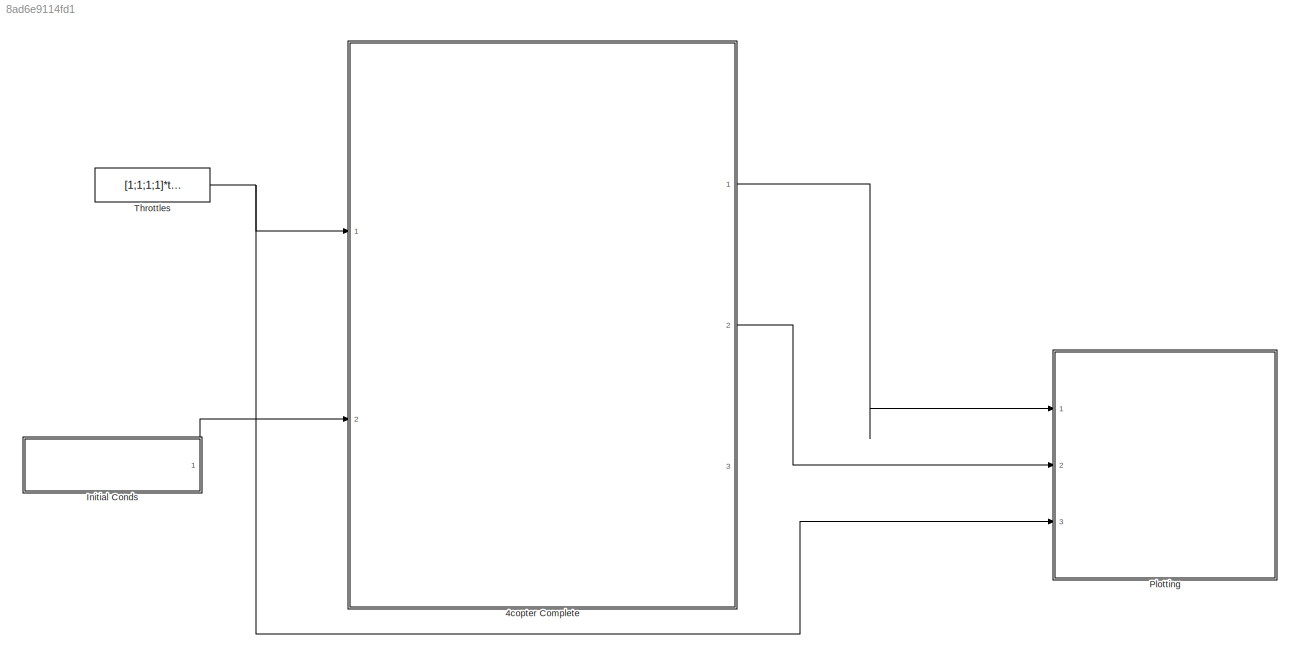
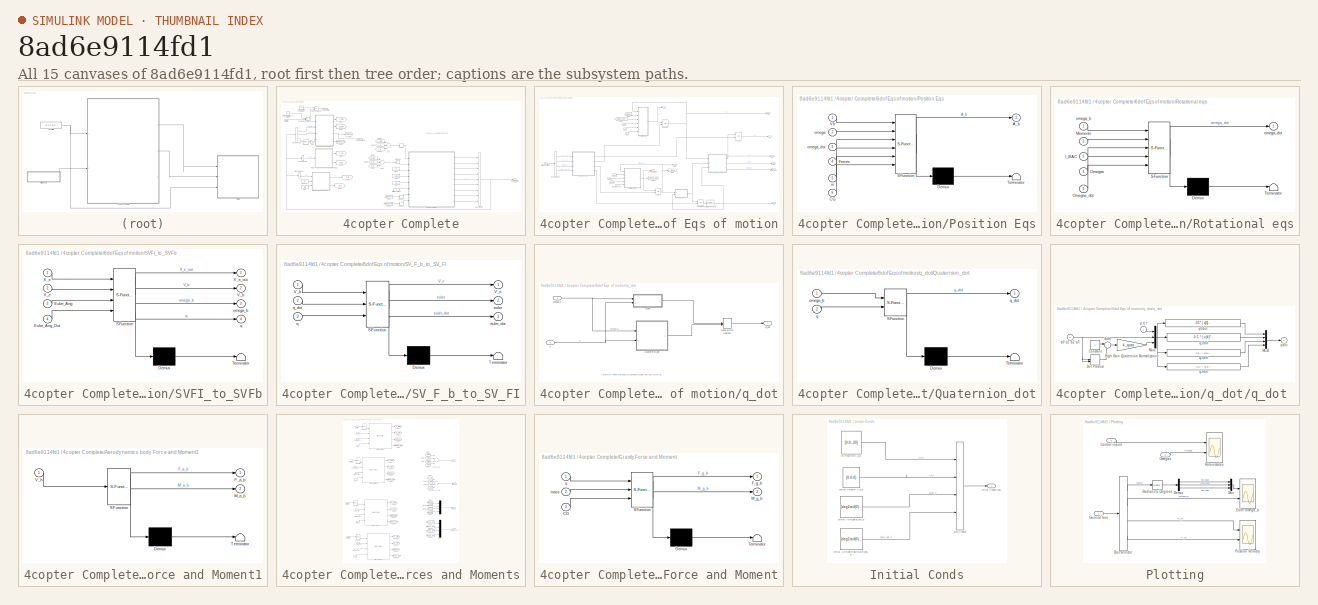
[diagram: thumbnail index - all 15 canvases of the model, root first then tree order]
MODEL slx_8ad6e9114fd1
KIND model
CONFIG AbsTol = auto
CONFIG FixedStep = T_sim
CONFIG MaxStep = auto
CONFIG MinStep = auto
CONFIG RelTol = 1e-5
CONFIG SampleTimeConstraint = Unconstrained
CONFIG Solver = ode3
CONFIG SolverMode = Auto
CONFIG SolverName = ode3
CONFIG StartTime = 0.0
CONFIG StopTime = 20
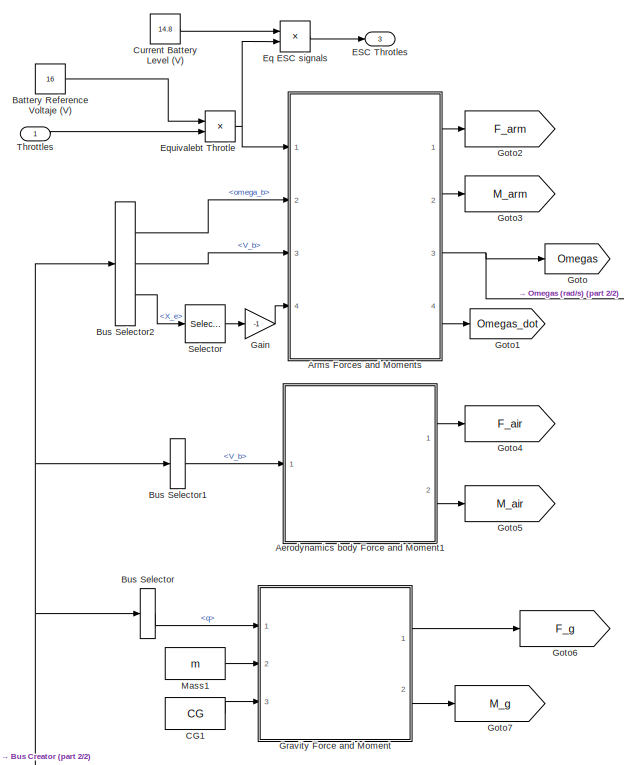
[diagram: 4copter Complete - part 1/2, left side, full height]
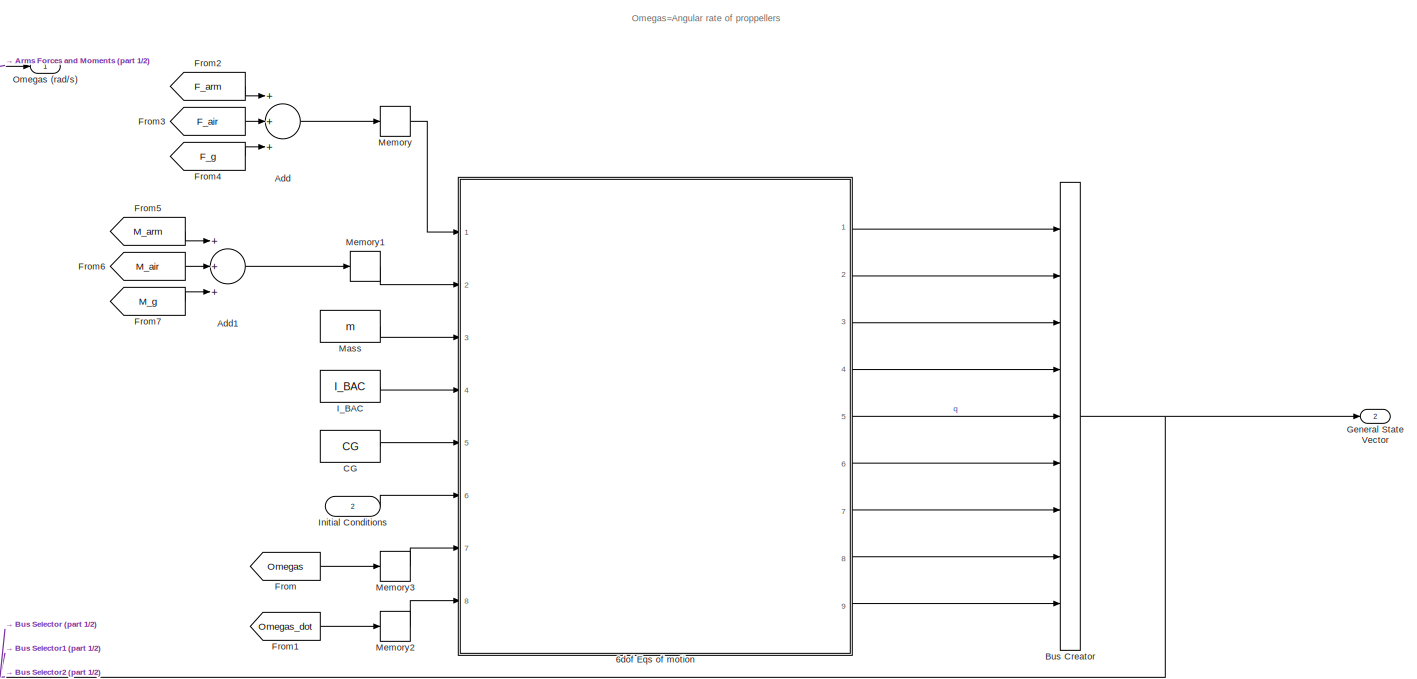
[diagram: 4copter Complete - part 2/2, central region]
BLOCK [SubSystem] 4copter Complete
  Ports = [2, 3]
  RequestExecContextInheritance = off
  TreatAsAtomicUnit = on
BLOCK [SubSystem] 4copter Complete/6dof Eqs of motion
  Ports = [8, 9]
  RequestExecContextInheritance = off
  TreatAsAtomicUnit = on
BLOCK [Outport] 4copter Complete/6dof Eqs of motion/Ab
  IconDisplay = Port number
  Port = 7
BLOCK [BusSelector] 4copter Complete/6dof Eqs of motion/Bus Selector
  OutputSignals = X_e_0,V_e_0,Euler_0,Euler_dot_0
  Ports = [1, 4]
BLOCK [Inport] 4copter Complete/6dof Eqs of motion/CG
  IconDisplay = Port number
  Port = 5
BLOCK [Inport] 4copter Complete/6dof Eqs of motion/Forces
  IconDisplay = Port number
BLOCK [From] 4copter Complete/6dof Eqs of motion/From
  GotoTag = omega
BLOCK [From] 4copter Complete/6dof Eqs of motion/From1
  GotoTag = omega_dot
BLOCK [Goto] 4copter Complete/6dof Eqs of motion/Goto
  GotoTag = omega
BLOCK [Goto] 4copter Complete/6dof Eqs of motion/Goto1
  GotoTag = omega_dot
BLOCK [Inport] 4copter Complete/6dof Eqs of motion/I_BAC
  IconDisplay = Port number
  Port = 4
BLOCK [Inport] 4copter Complete/6dof Eqs of motion/Initial Conditions
  IconDisplay = Port number
  Port = 6
BLOCK [Inport] 4copter Complete/6dof Eqs of motion/Moments
  IconDisplay = Port number
  Port = 2
BLOCK [Reference] 4copter Complete/6dof Eqs of motion/Normalize 4D vector  REF=MCopter/Normalize 4D vector
  Ports = [1, 1]
  SourceBlock = MCopter/Normalize 4D vector
  SourceType = SubSystem
BLOCK [Inport] 4copter Complete/6dof Eqs of motion/Omegas
  IconDisplay = Port number
  Port = 7
BLOCK [Inport] 4copter Complete/6dof Eqs of motion/Omegas_dot
  IconDisplay = Port number
  Port = 8
BLOCK [SubSystem] 4copter Complete/6dof Eqs of motion/Position Eqs
  ErrorFcn = Stateflow.Translate.translate
  PermitHierarchicalResolution = ExplicitOnly
  Ports = [6, 1]
  RequestExecContextInheritance = off
  SFBlockType = MATLAB Function
  TreatAsAtomicUnit = on
BLOCK [Demux] 4copter Complete/6dof Eqs of motion/Position Eqs/ Demux 
  Outputs = 1
  Ports = [1, 1]
BLOCK [S-Function] 4copter Complete/6dof Eqs of motion/Position Eqs/ SFunction 
  FunctionName = sf_sfun
  PortCounts = [6 2]
  Ports = [6, 2]
  Tag = Stateflow S-Function QuadcopterCompleteModel 1
BLOCK [Terminator] 4copter Complete/6dof Eqs of motion/Position Eqs/ Terminator 
BLOCK [Outport] 4copter Complete/6dof Eqs of motion/Position Eqs/A_b
  IconDisplay = Port number
BLOCK [Inport] 4copter Complete/6dof Eqs of motion/Position Eqs/CG
  IconDisplay = Port number
  Port = 6
BLOCK [Inport] 4copter Complete/6dof Eqs of motion/Position Eqs/Forces
  IconDisplay = Port number
  Port = 4
BLOCK [Inport] 4copter Complete/6dof Eqs of motion/Position Eqs/Vb
  IconDisplay = Port number
BLOCK [Inport] 4copter Complete/6dof Eqs of motion/Position Eqs/m
  IconDisplay = Port number
  Port = 5
BLOCK [Inport] 4copter Complete/6dof Eqs of motion/Position Eqs/omega
  IconDisplay = Port number
  Port = 2
BLOCK [Inport] 4copter Complete/6dof Eqs of motion/Position Eqs/omega_dot
  IconDisplay = Port number
  Port = 3
BLOCK [SubSystem] 4copter Complete/6dof Eqs of motion/Rotational eqs
  ErrorFcn = Stateflow.Translate.translate
  PermitHierarchicalResolution = ExplicitOnly
  Ports = [5, 1]
  RequestExecContextInheritance = off
  SFBlockType = MATLAB Function
  TreatAsAtomicUnit = on
BLOCK [Demux] 4copter Complete/6dof Eqs of motion/Rotational eqs/ Demux 
  Outputs = 1
  Ports = [1, 1]
BLOCK [S-Function] 4copter Complete/6dof Eqs of motion/Rotational eqs/ SFunction 
  FunctionName = sf_sfun
  Parameters = M_eq,R,Rotation_sign
  PortCounts = [5 2]
  Ports = [5, 2]
  Tag = Stateflow S-Function QuadcopterCompleteModel 2
BLOCK [Terminator] 4copter Complete/6dof Eqs of motion/Rotational eqs/ Terminator 
BLOCK [Inport] 4copter Complete/6dof Eqs of motion/Rotational eqs/I_BAC
  IconDisplay = Port number
  Port = 3
BLOCK [Inport] 4copter Complete/6dof Eqs of motion/Rotational eqs/Moments
  IconDisplay = Port number
  Port = 2
BLOCK [Inport] 4copter Complete/6dof Eqs of motion/Rotational eqs/Omegas
  IconDisplay = Port number
  Port = 4
BLOCK [Inport] 4copter Complete/6dof Eqs of motion/Rotational eqs/Omegas_dot
  IconDisplay = Port number
  Port = 5
BLOCK [Inport] 4copter Complete/6dof Eqs of motion/Rotational eqs/omega_b
  IconDisplay = Port number
BLOCK [Outport] 4copter Complete/6dof Eqs of motion/Rotational eqs/omega_dot
  IconDisplay = Port number
BLOCK [SubSystem] 4copter Complete/6dof Eqs of motion/SVFI_to_SVFb
  ErrorFcn = Stateflow.Translate.translate
  PermitHierarchicalResolution = ExplicitOnly
  Ports = [4, 4]
  RequestExecContextInheritance = off
  SFBlockType = MATLAB Function
  TreatAsAtomicUnit = on
BLOCK [Demux] 4copter Complete/6dof Eqs of motion/SVFI_to_SVFb/ Demux 
  Outputs = 1
  Ports = [1, 1]
BLOCK [S-Function] 4copter Complete/6dof Eqs of motion/SVFI_to_SVFb/ SFunction 
  FunctionName = sf_sfun
  PortCounts = [4 5]
  Ports = [4, 5]
  Tag = Stateflow S-Function QuadcopterCompleteModel 11
BLOCK [Terminator] 4copter Complete/6dof Eqs of motion/SVFI_to_SVFb/ Terminator 
BLOCK [Inport] 4copter Complete/6dof Eqs of motion/SVFI_to_SVFb/Euler_Ang
  IconDisplay = Port number
  Port = 3
BLOCK [Inport] 4copter Complete/6dof Eqs of motion/SVFI_to_SVFb/Euler_Ang_Dot
  IconDisplay = Port number
  Port = 4
BLOCK [Outport] 4copter Complete/6dof Eqs of motion/SVFI_to_SVFb/V_b
  IconDisplay = Port number
  Port = 2
BLOCK [Inport] 4copter Complete/6dof Eqs of motion/SVFI_to_SVFb/V_e
  IconDisplay = Port number
  Port = 2
BLOCK [Inport] 4copter Complete/6dof Eqs of motion/SVFI_to_SVFb/X_e
  IconDisplay = Port number
BLOCK [Outport] 4copter Complete/6dof Eqs of motion/SVFI_to_SVFb/X_e_out
  IconDisplay = Port number
BLOCK [Outport] 4copter Complete/6dof Eqs of motion/SVFI_to_SVFb/omega_b
  IconDisplay = Port number
  Port = 3
BLOCK [Outport] 4copter Complete/6dof Eqs of motion/SVFI_to_SVFb/q
  IconDisplay = Port number
  Port = 4
BLOCK [SubSystem] 4copter Complete/6dof Eqs of motion/SV_F_b_to_SV_FI
  ErrorFcn = Stateflow.Translate.translate
  PermitHierarchicalResolution = ExplicitOnly
  Ports = [3, 3]
  RequestExecContextInheritance = off
  SFBlockType = MATLAB Function
  TreatAsAtomicUnit = on
BLOCK [Demux] 4copter Complete/6dof Eqs of motion/SV_F_b_to_SV_FI/ Demux 
  Outputs = 1
  Ports = [1, 1]
BLOCK [S-Function] 4copter Complete/6dof Eqs of motion/SV_F_b_to_SV_FI/ SFunction 
  FunctionName = sf_sfun
  PortCounts = [3 4]
  Ports = [3, 4]
  Tag = Stateflow S-Function QuadcopterCompleteModel 12
BLOCK [Terminator] 4copter Complete/6dof Eqs of motion/SV_F_b_to_SV_FI/ Terminator 
BLOCK [Inport] 4copter Complete/6dof Eqs of motion/SV_F_b_to_SV_FI/V_b
  IconDisplay = Port number
BLOCK [Outport] 4copter Complete/6dof Eqs of motion/SV_F_b_to_SV_FI/V_e
  IconDisplay = Port number
BLOCK [Outport] 4copter Complete/6dof Eqs of motion/SV_F_b_to_SV_FI/euler
  IconDisplay = Port number
  Port = 2
BLOCK [Outport] 4copter Complete/6dof Eqs of motion/SV_F_b_to_SV_FI/euler_dot
  IconDisplay = Port number
  Port = 3
BLOCK [Inport] 4copter Complete/6dof Eqs of motion/SV_F_b_to_SV_FI/q
  IconDisplay = Port number
  Port = 3
BLOCK [Inport] 4copter Complete/6dof Eqs of motion/SV_F_b_to_SV_FI/q_dot
  IconDisplay = Port number
  Port = 2
BLOCK [Outport] 4copter Complete/6dof Eqs of motion/Vb
  IconDisplay = Port number
  Port = 3
BLOCK [Outport] 4copter Complete/6dof Eqs of motion/Ve
  IconDisplay = Port number
  Port = 2
BLOCK [Outport] 4copter Complete/6dof Eqs of motion/Xe
  IconDisplay = Port number
BLOCK [Outport] 4copter Complete/6dof Eqs of motion/euler
  IconDisplay = Port number
  Port = 8
BLOCK [Outport] 4copter Complete/6dof Eqs of motion/euler_dot
  IconDisplay = Port number
  Port = 9
BLOCK [Inport] 4copter Complete/6dof Eqs of motion/mass
  IconDisplay = Port number
  Port = 3
BLOCK [Outport] 4copter Complete/6dof Eqs of motion/p,q,r
  IconDisplay = Port number
  Port = 4
BLOCK [Integrator] 4copter Complete/6dof Eqs of motion/p,q,r 
  InitialCondition = [P_0,Q_0,R_0]
  InitialConditionSource = external
  Ports = [2, 1]
BLOCK [Outport] 4copter Complete/6dof Eqs of motion/pdot,qdot,rdot
  IconDisplay = Port number
  Port = 6
BLOCK [Outport] 4copter Complete/6dof Eqs of motion/q
  IconDisplay = Port number
  Port = 5
BLOCK [SubSystem] 4copter Complete/6dof Eqs of motion/q_dot
  Ports = [2, 1]
  RequestExecContextInheritance = off
  TreatAsAtomicUnit = on
BLOCK [SubSystem] 4copter Complete/6dof Eqs of motion/q_dot/Quaternion_dot
  ErrorFcn = Stateflow.Translate.translate
  PermitHierarchicalResolution = ExplicitOnly
  Ports = [2, 1]
  RequestExecContextInheritance = off
  SFBlockType = MATLAB Function
  TreatAsAtomicUnit = on
  VariantControl = Variant
BLOCK [Demux] 4copter Complete/6dof Eqs of motion/q_dot/Quaternion_dot/ Demux 
  Outputs = 1
  Ports = [1, 1]
BLOCK [S-Function] 4copter Complete/6dof Eqs of motion/q_dot/Quaternion_dot/ SFunction 
  FunctionName = sf_sfun
  PortCounts = [2 2]
  Ports = [2, 2]
  Tag = Stateflow S-Function QuadcopterCompleteModel 3
BLOCK [Terminator] 4copter Complete/6dof Eqs of motion/q_dot/Quaternion_dot/ Terminator 
BLOCK [Inport] 4copter Complete/6dof Eqs of motion/q_dot/Quaternion_dot/omega_b
  IconDisplay = Port number
BLOCK [Inport] 4copter Complete/6dof Eqs of motion/q_dot/Quaternion_dot/q
  IconDisplay = Port number
  Port = 2
BLOCK [Outport] 4copter Complete/6dof Eqs of motion/q_dot/Quaternion_dot/q_dot
  IconDisplay = Port number
BLOCK [ManualSwitch] 4copter Complete/6dof Eqs of motion/q_dot/chose which method
  CurrentSetting = 0
BLOCK [Inport] 4copter Complete/6dof Eqs of motion/q_dot/omega_b
  IconDisplay = Port number
BLOCK [Inport] 4copter Complete/6dof Eqs of motion/q_dot/q
  IconDisplay = Port number
  Port = 2
BLOCK [Outport] 4copter Complete/6dof Eqs of motion/q_dot/q_dot
  IconDisplay = Port number
BLOCK [SubSystem] 4copter Complete/6dof Eqs of motion/q_dot/q_dot 
  Ports = [2, 1]
  RequestExecContextInheritance = off
  TreatAsAtomicUnit = on
BLOCK [Constant] 4copter Complete/6dof Eqs of motion/q_dot/q_dot /Constant
BLOCK [DotProduct] 4copter Complete/6dof Eqs of motion/q_dot/q_dot /Dot Product
  InputSameDT = off
  OutDataTypeStr = Inherit: Inherit via internal rule
BLOCK [Gain] 4copter Complete/6dof Eqs of motion/q_dot/q_dot /High Gain Quaternion Normalization
  Gain = k_quat
BLOCK [Mux] 4copter Complete/6dof Eqs of motion/q_dot/q_dot /Mux1
  DisplayOption = bar
  Inputs = [3 4 1]
  Ports = [3, 1]
BLOCK [Mux] 4copter Complete/6dof Eqs of motion/q_dot/q_dot /Mux2
  DisplayOption = bar
  Ports = [4, 1]
BLOCK [Sum] 4copter Complete/6dof Eqs of motion/q_dot/q_dot /Sum
  IconShape = round
  Inputs = |+-
  Ports = [2, 1]
BLOCK [Inport] 4copter Complete/6dof Eqs of motion/q_dot/q_dot /p q r
  IconDisplay = Port number
BLOCK [Inport] 4copter Complete/6dof Eqs of motion/q_dot/q_dot /q0 q1 q2 q3
  IconDisplay = Port number
  Port = 2
BLOCK [Fcn] 4copter Complete/6dof Eqs of motion/q_dot/q_dot /q0dot
  Expr = -0.5 * ( u[5]*u[1]+u[6]*u[2]+u[7]*u[3] ) + u[8]*u[4]
BLOCK [Fcn] 4copter Complete/6dof Eqs of motion/q_dot/q_dot /q1dot
  Expr = 0.5 * ( u[4]*u[1]+u[6]*u[3]-u[7]*u[2] ) + u[8]*u[5]
BLOCK [Fcn] 4copter Complete/6dof Eqs of motion/q_dot/q_dot /q2dot
  Expr = 0.5 * ( u[4]*u[2]+u[7]*u[1]-u[5]*u[3] ) + u[8]*u[6]
BLOCK [Fcn] 4copter Complete/6dof Eqs of motion/q_dot/q_dot /q3dot
  Expr = 0.5 * ( u[4]*u[3]+u[5]*u[2]-u[6]*u[1] ) + u[8]*u[7]
BLOCK [Outport] 4copter Complete/6dof Eqs of motion/q_dot/q_dot /qdot
  IconDisplay = Port number
  InitialOutput = 0
BLOCK [Integrator] 4copter Complete/6dof Eqs of motion/quaternion
  InitialCondition = [P_0,Q_0,R_0]
  InitialConditionSource = external
  Ports = [2, 1]
BLOCK [Integrator] 4copter Complete/6dof Eqs of motion/ub,vb,wb
  InitialCondition = [U_0,V_0,W_0]
  InitialConditionSource = external
  Ports = [2, 1]
BLOCK [Integrator] 4copter Complete/6dof Eqs of motion/xe,ye,ze
  InitialCondition = [NORTH_0,EAST_0,-DOWN_0]
  InitialConditionSource = external
  Ports = [2, 1]
BLOCK [Sum] 4copter Complete/Add
  InputSameDT = off
  Inputs = +++
  OutDataTypeStr = Inherit: Inherit via internal rule
  Ports = [3, 1]
  SaturateOnIntegerOverflow = off
BLOCK [Sum] 4copter Complete/Add1
  InputSameDT = off
  Inputs = +++
  OutDataTypeStr = Inherit: Inherit via internal rule
  Ports = [3, 1]
  SaturateOnIntegerOverflow = off
BLOCK [SubSystem] 4copter Complete/Aerodynamics body Force and Moment1
  ErrorFcn = Stateflow.Translate.translate
  PermitHierarchicalResolution = ExplicitOnly
  Ports = [1, 2]
  RequestExecContextInheritance = off
  SFBlockType = MATLAB Function
  TreatAsAtomicUnit = on
BLOCK [Demux] 4copter Complete/Aerodynamics body Force and Moment1/ Demux 
  Outputs = 1
  Ports = [1, 1]
BLOCK [S-Function] 4copter Complete/Aerodynamics body Force and Moment1/ SFunction 
  FunctionName = sf_sfun
  Parameters = A_x,A_y,A_z,C_x,C_y,C_z,rho
  PortCounts = [1 3]
  Ports = [1, 3]
  Tag = Stateflow S-Function QuadcopterCompleteModel 5
BLOCK [Terminator] 4copter Complete/Aerodynamics body Force and Moment1/ Terminator 
BLOCK [Outport] 4copter Complete/Aerodynamics body Force and Moment1/F_a_b
  IconDisplay = Port number
BLOCK [Outport] 4copter Complete/Aerodynamics body Force and Moment1/M_a_b
  IconDisplay = Port number
  Port = 2
BLOCK [Inport] 4copter Complete/Aerodynamics body Force and Moment1/V_b
  IconDisplay = Port number
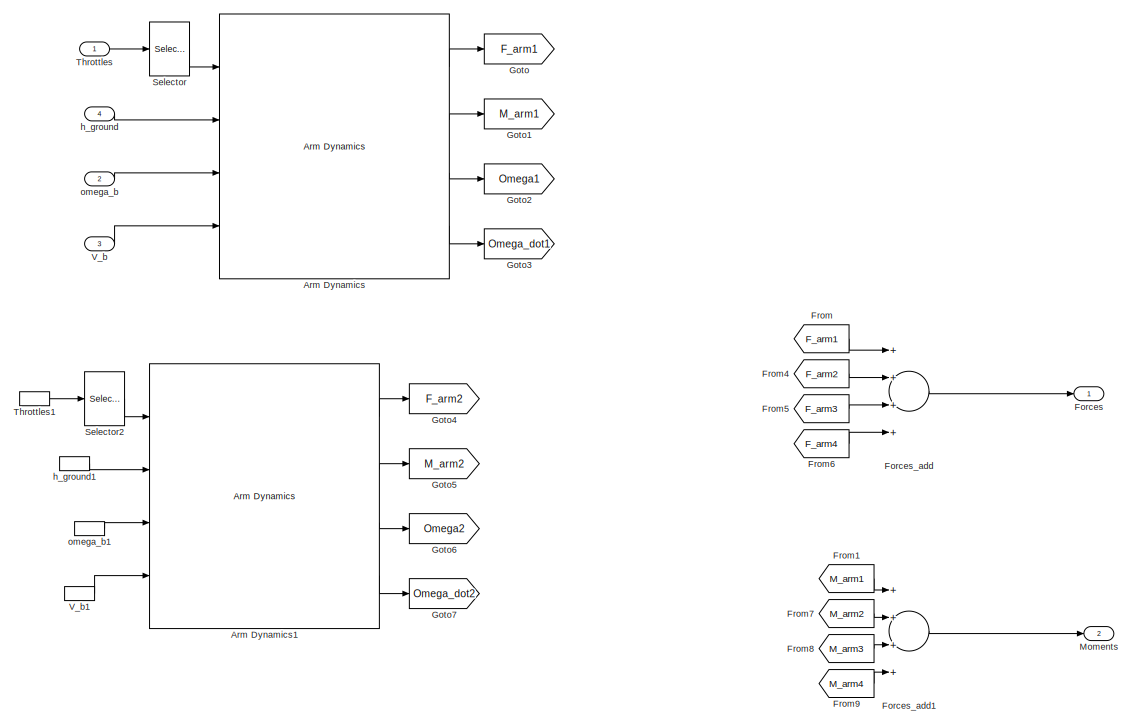
[diagram: 4copter Complete/Arms Forces and Moments - part 1/2, full width, top band]
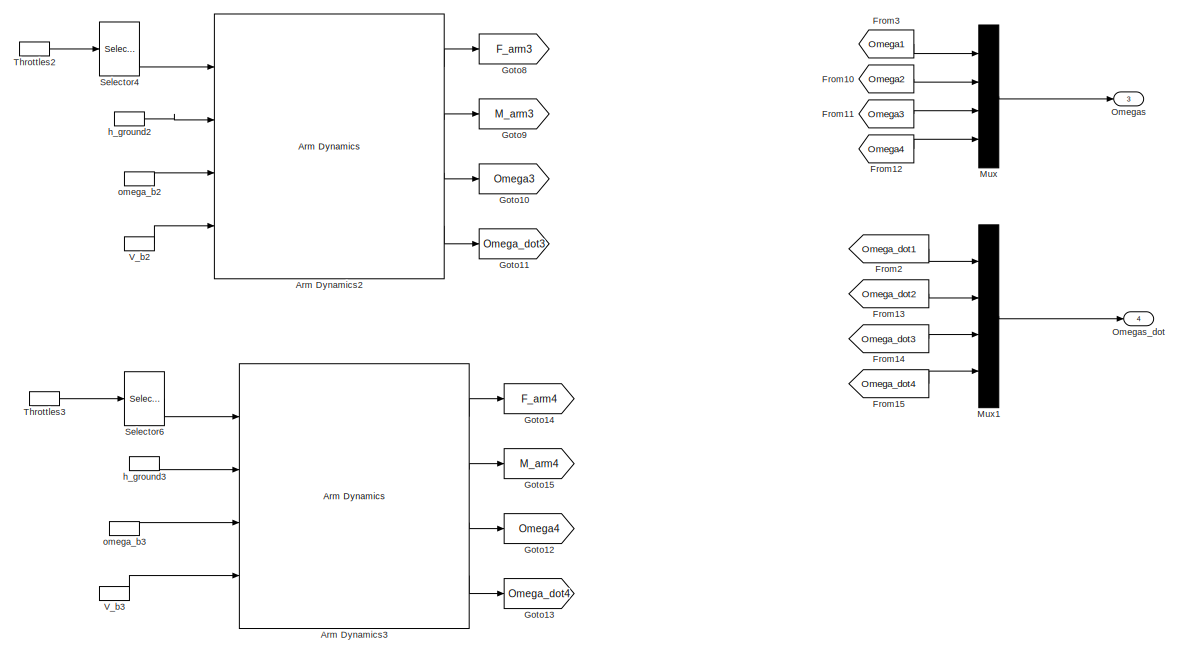
[diagram: 4copter Complete/Arms Forces and Moments - part 2/2, full width, bottom band]
BLOCK [SubSystem] 4copter Complete/Arms Forces and Moments
  Ports = [4, 4]
  RequestExecContextInheritance = off
  TreatAsAtomicUnit = on
BLOCK [Reference] 4copter Complete/Arms Forces and Moments/Arm Dynamics  REF=MCopter/Arm Dynamics
  J_T = J_T
  Omega_ini = Initial_Omegas(1)
  Ports = [4, 4]
  Rot_sign = Rotation_sign(1)
  SourceBlock = MCopter/Arm Dynamics
  SourceType = Arm dynamics, forces and moments
  Torq_ini = Initial_Torques(1)
  arm_hub_pos = l*[1;0;0]
  arm_num = 1
  h = h
  tau = Tau_motors
BLOCK [Reference] 4copter Complete/Arms Forces and Moments/Arm Dynamics1  REF=MCopter/Arm Dynamics
  J_T = J_T
  Omega_ini = Initial_Omegas(2)
  Ports = [4, 4]
  Rot_sign = Rotation_sign(2)
  SourceBlock = MCopter/Arm Dynamics
  SourceType = Arm dynamics, forces and moments
  Torq_ini = Initial_Torques(2)
  arm_hub_pos = l*[0;1;0]
  arm_num = 2
  h = h
  tau = Tau_motors
BLOCK [Reference] 4copter Complete/Arms Forces and Moments/Arm Dynamics2  REF=MCopter/Arm Dynamics
  J_T = J_T
  Omega_ini = Initial_Omegas(3)
  Ports = [4, 4]
  Rot_sign = Rotation_sign(3)
  SourceBlock = MCopter/Arm Dynamics
  SourceType = Arm dynamics, forces and moments
  Torq_ini = Initial_Torques(3)
  arm_hub_pos = l*[-1;0;0]
  arm_num = 3
  h = h
  tau = Tau_motors
BLOCK [Reference] 4copter Complete/Arms Forces and Moments/Arm Dynamics3  REF=MCopter/Arm Dynamics
  J_T = J_T
  Omega_ini = Initial_Omegas(4)
  Ports = [4, 4]
  Rot_sign = Rotation_sign(4)
  SourceBlock = MCopter/Arm Dynamics
  SourceType = Arm dynamics, forces and moments
  Torq_ini = Initial_Torques(4)
  arm_hub_pos = l*[0;-1;0]
  arm_num = 4
  h = h
  tau = Tau_motors
BLOCK [Outport] 4copter Complete/Arms Forces and Moments/Forces
  IconDisplay = Port number
BLOCK [Sum] 4copter Complete/Arms Forces and Moments/Forces_add
  InputSameDT = off
  Inputs = ++++
  OutDataTypeStr = Inherit: Inherit via internal rule
  Ports = [4, 1]
  SaturateOnIntegerOverflow = off
BLOCK [Sum] 4copter Complete/Arms Forces and Moments/Forces_add1
  InputSameDT = off
  Inputs = ++++
  OutDataTypeStr = Inherit: Inherit via internal rule
  Ports = [4, 1]
  SaturateOnIntegerOverflow = off
BLOCK [From] 4copter Complete/Arms Forces and Moments/From
  GotoTag = F_arm1
BLOCK [From] 4copter Complete/Arms Forces and Moments/From1
  GotoTag = M_arm1
BLOCK [From] 4copter Complete/Arms Forces and Moments/From10
  GotoTag = Omega2
BLOCK [From] 4copter Complete/Arms Forces and Moments/From11
  GotoTag = Omega3
BLOCK [From] 4copter Complete/Arms Forces and Moments/From12
  GotoTag = Omega4
BLOCK [From] 4copter Complete/Arms Forces and Moments/From13
  GotoTag = Omega_dot2
BLOCK [From] 4copter Complete/Arms Forces and Moments/From14
  GotoTag = Omega_dot3
BLOCK [From] 4copter Complete/Arms Forces and Moments/From15
  GotoTag = Omega_dot4
BLOCK [From] 4copter Complete/Arms Forces and Moments/From2
  GotoTag = Omega_dot1
BLOCK [From] 4copter Complete/Arms Forces and Moments/From3
  GotoTag = Omega1
BLOCK [From] 4copter Complete/Arms Forces and Moments/From4
  GotoTag = F_arm2
BLOCK [From] 4copter Complete/Arms Forces and Moments/From5
  GotoTag = F_arm3
BLOCK [From] 4copter Complete/Arms Forces and Moments/From6
  GotoTag = F_arm4
BLOCK [From] 4copter Complete/Arms Forces and Moments/From7
  GotoTag = M_arm2
BLOCK [From] 4copter Complete/Arms Forces and Moments/From8
  GotoTag = M_arm3
BLOCK [From] 4copter Complete/Arms Forces and Moments/From9
  GotoTag = M_arm4
BLOCK [Goto] 4copter Complete/Arms Forces and Moments/Goto
  GotoTag = F_arm1
BLOCK [Goto] 4copter Complete/Arms Forces and Moments/Goto1
  GotoTag = M_arm1
BLOCK [Goto] 4copter Complete/Arms Forces and Moments/Goto10
  GotoTag = Omega3
BLOCK [Goto] 4copter Complete/Arms Forces and Moments/Goto11
  GotoTag = Omega_dot3
BLOCK [Goto] 4copter Complete/Arms Forces and Moments/Goto12
  GotoTag = Omega4
BLOCK [Goto] 4copter Complete/Arms Forces and Moments/Goto13
  GotoTag = Omega_dot4
BLOCK [Goto] 4copter Complete/Arms Forces and Moments/Goto14
  GotoTag = F_arm4
BLOCK [Goto] 4copter Complete/Arms Forces and Moments/Goto15
  GotoTag = M_arm4
BLOCK [Goto] 4copter Complete/Arms Forces and Moments/Goto2
  GotoTag = Omega1
BLOCK [Goto] 4copter Complete/Arms Forces and Moments/Goto3
  GotoTag = Omega_dot1
BLOCK [Goto] 4copter Complete/Arms Forces and Moments/Goto4
  GotoTag = F_arm2
BLOCK [Goto] 4copter Complete/Arms Forces and Moments/Goto5
  GotoTag = M_arm2
BLOCK [Goto] 4copter Complete/Arms Forces and Moments/Goto6
  GotoTag = Omega2
BLOCK [Goto] 4copter Complete/Arms Forces and Moments/Goto7
  GotoTag = Omega_dot2
BLOCK [Goto] 4copter Complete/Arms Forces and Moments/Goto8
  GotoTag = F_arm3
BLOCK [Goto] 4copter Complete/Arms Forces and Moments/Goto9
  GotoTag = M_arm3
BLOCK [Outport] 4copter Complete/Arms Forces and Moments/Moments
  IconDisplay = Port number
  Port = 2
BLOCK [Mux] 4copter Complete/Arms Forces and Moments/Mux
  DisplayOption = bar
  Ports = [4, 1]
BLOCK [Mux] 4copter Complete/Arms Forces and Moments/Mux1
  DisplayOption = bar
  Ports = [4, 1]
BLOCK [Outport] 4copter Complete/Arms Forces and Moments/Omegas
  IconDisplay = Port number
  Port = 3
BLOCK [Outport] 4copter Complete/Arms Forces and Moments/Omegas_dot
  IconDisplay = Port number
  Port = 4
BLOCK [Selector] 4copter Complete/Arms Forces and Moments/Selector
  Indices = [1]
  InputPortWidth = 4
  Ports = [1, 1]
BLOCK [Selector] 4copter Complete/Arms Forces and Moments/Selector2
  Indices = 2
  InputPortWidth = 4
  Ports = [1, 1]
BLOCK [Selector] 4copter Complete/Arms Forces and Moments/Selector4
  Indices = 3
  InputPortWidth = 4
  Ports = [1, 1]
BLOCK [Selector] 4copter Complete/Arms Forces and Moments/Selector6
  Indices = 4
  InputPortWidth = 4
  Ports = [1, 1]
BLOCK [Inport] 4copter Complete/Arms Forces and Moments/Throttles
  IconDisplay = Port number
BLOCK [InportShadow] 4copter Complete/Arms Forces and Moments/Throttles1
  IconDisplay = Port number
BLOCK [InportShadow] 4copter Complete/Arms Forces and Moments/Throttles2
  IconDisplay = Port number
BLOCK [InportShadow] 4copter Complete/Arms Forces and Moments/Throttles3
  IconDisplay = Port number
BLOCK [Inport] 4copter Complete/Arms Forces and Moments/V_b
  IconDisplay = Port number
  Port = 3
BLOCK [InportShadow] 4copter Complete/Arms Forces and Moments/V_b1
  IconDisplay = Port number
  Port = 3
BLOCK [InportShadow] 4copter Complete/Arms Forces and Moments/V_b2
  IconDisplay = Port number
  Port = 3
BLOCK [InportShadow] 4copter Complete/Arms Forces and Moments/V_b3
  IconDisplay = Port number
  Port = 3
BLOCK [Inport] 4copter Complete/Arms Forces and Moments/h_ground
  IconDisplay = Port number
  Port = 4
BLOCK [InportShadow] 4copter Complete/Arms Forces and Moments/h_ground1
  IconDisplay = Port number
  Port = 4
BLOCK [InportShadow] 4copter Complete/Arms Forces and Moments/h_ground2
  IconDisplay = Port number
  Port = 4
BLOCK [InportShadow] 4copter Complete/Arms Forces and Moments/h_ground3
  IconDisplay = Port number
  Port = 4
BLOCK [Inport] 4copter Complete/Arms Forces and Moments/omega_b
  IconDisplay = Port number
  Port = 2
BLOCK [InportShadow] 4copter Complete/Arms Forces and Moments/omega_b1
  IconDisplay = Port number
  Port = 2
BLOCK [InportShadow] 4copter Complete/Arms Forces and Moments/omega_b2
  IconDisplay = Port number
  Port = 2
BLOCK [InportShadow] 4copter Complete/Arms Forces and Moments/omega_b3
  IconDisplay = Port number
  Port = 2
BLOCK [Constant] 4copter Complete/Battery Reference Voltaje (V)
  Value = 16
BLOCK [BusCreator] 4copter Complete/Bus Creator
  DisplayOption = bar
  Inputs = 9
  Ports = [9, 1]
BLOCK [BusSelector] 4copter Complete/Bus Selector
  OutputSignals = q
  Ports = [1, 1]
BLOCK [BusSelector] 4copter Complete/Bus Selector1
  OutputSignals = V_b
  Ports = [1, 1]
BLOCK [BusSelector] 4copter Complete/Bus Selector2
  OutputSignals = omega_b,V_b,X_e
  Ports = [1, 3]
BLOCK [Constant] 4copter Complete/CG
  Value = CG
BLOCK [Constant] 4copter Complete/CG1
  Value = CG
BLOCK [Constant] 4copter Complete/Current Battery Level (V)
  Value = 14.8
BLOCK [Outport] 4copter Complete/ESC Throtles
  IconDisplay = Port number
  Port = 3
BLOCK [Product] 4copter Complete/Eq ESC signals
  InputSameDT = off
  Inputs = **
  OutDataTypeStr = Inherit: Inherit via internal rule
  Ports = [2, 1]
  RndMeth = Floor
  SaturateOnIntegerOverflow = off
BLOCK [Product] 4copter Complete/Equivalebt Throtle
  InputSameDT = off
  Inputs = **
  OutDataTypeStr = Inherit: Inherit via internal rule
  Ports = [2, 1]
  RndMeth = Floor
  SaturateOnIntegerOverflow = off
BLOCK [From] 4copter Complete/From
  GotoTag = Omegas
BLOCK [From] 4copter Complete/From1
  GotoTag = Omegas_dot
BLOCK [From] 4copter Complete/From2
  GotoTag = F_arm
BLOCK [From] 4copter Complete/From3
  GotoTag = F_air
BLOCK [From] 4copter Complete/From4
  GotoTag = F_g
BLOCK [From] 4copter Complete/From5
  GotoTag = M_arm
BLOCK [From] 4copter Complete/From6
  GotoTag = M_air
BLOCK [From] 4copter Complete/From7
  GotoTag = M_g
BLOCK [Gain] 4copter Complete/Gain
  Gain = -1
  OutDataTypeStr = Inherit: Inherit via internal rule
  ParamDataTypeStr = Inherit: Inherit via internal rule
  SaturateOnIntegerOverflow = off
BLOCK [Outport] 4copter Complete/General State Vector
  IconDisplay = Port number
  Port = 2
BLOCK [Goto] 4copter Complete/Goto
  GotoTag = Omegas
BLOCK [Goto] 4copter Complete/Goto1
  GotoTag = Omegas_dot
BLOCK [Goto] 4copter Complete/Goto2
  GotoTag = F_arm
BLOCK [Goto] 4copter Complete/Goto3
  GotoTag = M_arm
BLOCK [Goto] 4copter Complete/Goto4
  GotoTag = F_air
BLOCK [Goto] 4copter Complete/Goto5
  GotoTag = M_air
BLOCK [Goto] 4copter Complete/Goto6
  GotoTag = F_g
BLOCK [Goto] 4copter Complete/Goto7
  GotoTag = M_g
BLOCK [SubSystem] 4copter Complete/Gravity Force and Moment
  ErrorFcn = Stateflow.Translate.translate
  PermitHierarchicalResolution = ExplicitOnly
  Ports = [3, 2]
  RequestExecContextInheritance = off
  SFBlockType = MATLAB Function
  TreatAsAtomicUnit = on
BLOCK [Demux] 4copter Complete/Gravity Force and Moment/ Demux 
  Outputs = 1
  Ports = [1, 1]
BLOCK [S-Function] 4copter Complete/Gravity Force and Moment/ SFunction 
  FunctionName = sf_sfun
  Parameters = g
  PortCounts = [3 3]
  Ports = [3, 3]
  Tag = Stateflow S-Function QuadcopterCompleteModel 4
BLOCK [Terminator] 4copter Complete/Gravity Force and Moment/ Terminator 
BLOCK [Inport] 4copter Complete/Gravity Force and Moment/CG
  IconDisplay = Port number
  Port = 3
BLOCK [Outport] 4copter Complete/Gravity Force and Moment/F_g_b
  IconDisplay = Port number
BLOCK [Outport] 4copter Complete/Gravity Force and Moment/M_g_b
  IconDisplay = Port number
  Port = 2
BLOCK [Inport] 4copter Complete/Gravity Force and Moment/mass
  IconDisplay = Port number
  Port = 2
BLOCK [Inport] 4copter Complete/Gravity Force and Moment/q
  IconDisplay = Port number
BLOCK [Constant] 4copter Complete/I_BAC
  Value = I_BAC
BLOCK [Inport] 4copter Complete/Initial Conditions
  IconDisplay = Port number
  Port = 2
BLOCK [Constant] 4copter Complete/Mass
  Value = m
BLOCK [Constant] 4copter Complete/Mass1
  Value = m
BLOCK [Memory] 4copter Complete/Memory
  X0 = [0,0,0]'
BLOCK [Memory] 4copter Complete/Memory1
  X0 = [0,0,0]'
BLOCK [Memory] 4copter Complete/Memory2
  X0 = [0,0,0,0]'
BLOCK [Memory] 4copter Complete/Memory3
  X0 = Initial_Omegas
BLOCK [Outport] 4copter Complete/Omegas (rad//s)
  IconDisplay = Port number
BLOCK [Selector] 4copter Complete/Selector
  Indices = 3
  InputPortWidth = 3
  Ports = [1, 1]
BLOCK [Inport] 4copter Complete/Throttles
  IconDisplay = Port number
BLOCK [SubSystem] Initial Conds
  Ports = [0, 1]
  RequestExecContextInheritance = off
  TreatAsAtomicUnit = on
BLOCK [BusCreator] Initial Conds/Bus Creator
  DisplayOption = bar
  Ports = [4, 1]
BLOCK [Constant] Initial Conds/Ini Position X_e_0
  Value = [0;0;-20]
BLOCK [Constant] Initial Conds/Initial Attitude Euler_0
  Value = [deg2rad(0);deg2rad(0);deg2rad(0)]
BLOCK [Constant] Initial Conds/Initial Attitude Rate  Euler_dot_0
  Value = [deg2rad(0);deg2rad(0);deg2rad(0)]
BLOCK [Outport] Initial Conds/Initial Conditions
  IconDisplay = Port number
BLOCK [Constant] Initial Conds/Initial Velocity V_e_0
  Value = [0;0;0]
BLOCK [SubSystem] Plotting
  Ports = [3]
  RequestExecContextInheritance = off
BLOCK [BusSelector] Plotting/Bus Selector
  OutputSignals = euler,omega_b,X_e,V_e
  Ports = [1, 4]
BLOCK [Inport] Plotting/Control inputs
  IconDisplay = Port number
  Port = 3
BLOCK [Demux] Plotting/Demux
  DisplayOption = bar
  Outputs = 3
  Ports = [1, 3]
BLOCK [Scope] Plotting/Euler omega_b
  DataFormat = StructureWithTime
  Floating = off
  LimitDataPoints = off
  NumInputPorts = 2
  Ports = [2]
  SampleTime = 0
  ShowLegends = on
  TimeRange = 50
  YMax = 35~0.7
  YMin = -45~-0.8
BLOCK [Inport] Plotting/General bus
  IconDisplay = Port number
  Port = 2
BLOCK [Mux] Plotting/Mux
  DisplayOption = bar
  Inputs = 3
  Ports = [3, 1]
BLOCK [Inport] Plotting/Omegas
  IconDisplay = Port number
BLOCK [Scope] Plotting/Position Velocity
  DataFormat = StructureWithTime
  Floating = off
  LegendLocations = 0.83115     0.86135     0.12123    0.072992\n0.83115     0.39772     0.12123    0.072992
  LimitDataPoints = off
  NumInputPorts = 2
  Ports = [2]
  SampleTime = 0
  SaveName = ScopeData8
  ShowLegends = on
  TimeRange = 2
  YMax = 0~0.8
  YMin = -20~0
BLOCK [Reference] Plotting/Radians to Degrees  REF=simulink_extras/Transformations/Radians
to Degrees
  Ports = [1, 1]
  SourceBlock = simulink_extras/Transformations/Radians\nto Degrees
  SourceType = RadiansToDegrees
BLOCK [Scope] Plotting/Rotors states
  DataFormat = StructureWithTime
  Floating = off
  LegendLocations = 0.80122     0.84873    0.083152    0.077284\n0.82915     0.38418    0.066716    0.077284
  NumInputPorts = 2
  Ports = [2]
  SampleTime = 0
  SaveName = ScopeData1
  ShowLegends = on
  TimeRange = 2
  YMax = 1.4~670
  YMin = -0.6~640
BLOCK [Constant] Throttles
  Value = [1;1;1;1]*throtle_0
ANNOTATION 4copter Complete: Omegas=Angular rate of proppellers
ANNOTATION 4copter Complete/6dof Eqs of motion/q_dot: Both of these methods to compute q_dot are very similar
LINE 4copter Complete/6dof Eqs of motion/Bus Selector:1 -> 4copter Complete/6dof Eqs of motion/SVFI_to_SVFb:1
LINE 4copter Complete/6dof Eqs of motion/Bus Selector:2 -> 4copter Complete/6dof Eqs of motion/SVFI_to_SVFb:2
LINE 4copter Complete/6dof Eqs of motion/Bus Selector:3 -> 4copter Complete/6dof Eqs of motion/SVFI_to_SVFb:3
LINE 4copter Complete/6dof Eqs of motion/Bus Selector:4 -> 4copter Complete/6dof Eqs of motion/SVFI_to_SVFb:4
LINE 4copter Complete/6dof Eqs of motion/CG:1 -> 4copter Complete/6dof Eqs of motion/Position Eqs:6
LINE 4copter Complete/6dof Eqs of motion/Forces:1 -> 4copter Complete/6dof Eqs of motion/Position Eqs:4
LINE 4copter Complete/6dof Eqs of motion/From1:1 -> 4copter Complete/6dof Eqs of motion/Position Eqs:3
LINE 4copter Complete/6dof Eqs of motion/From:1 -> 4copter Complete/6dof Eqs of motion/Position Eqs:2
LINE 4copter Complete/6dof Eqs of motion/I_BAC:1 -> 4copter Complete/6dof Eqs of motion/Rotational eqs:3
LINE 4copter Complete/6dof Eqs of motion/Initial Conditions:1 -> 4copter Complete/6dof Eqs of motion/Bus Selector:1
LINE 4copter Complete/6dof Eqs of motion/Moments:1 -> 4copter Complete/6dof Eqs of motion/Rotational eqs:2
NET 4copter Complete/6dof Eqs of motion/Normalize 4D vector:1 -> 4copter Complete/6dof Eqs of motion/SV_F_b_to_SV_FI:3, 4copter Complete/6dof Eqs of motion/q:1, 4copter Complete/6dof Eqs of motion/q_dot:2
LINE 4copter Complete/6dof Eqs of motion/Omegas:1 -> 4copter Complete/6dof Eqs of motion/Rotational eqs:4
LINE 4copter Complete/6dof Eqs of motion/Omegas_dot:1 -> 4copter Complete/6dof Eqs of motion/Rotational eqs:5
NET 4copter Complete/6dof Eqs of motion/Position Eqs:1 -> 4copter Complete/6dof Eqs of motion/Ab:1, 4copter Complete/6dof Eqs of motion/ub,vb,wb:1
NET 4copter Complete/6dof Eqs of motion/Rotational eqs:1 -> 4copter Complete/6dof Eqs of motion/Goto1:1, 4copter Complete/6dof Eqs of motion/p,q,r :1, 4copter Complete/6dof Eqs of motion/pdot,qdot,rdot:1
LINE 4copter Complete/6dof Eqs of motion/SVFI_to_SVFb:1 -> 4copter Complete/6dof Eqs of motion/xe,ye,ze:2
LINE 4copter Complete/6dof Eqs of motion/SVFI_to_SVFb:2 -> 4copter Complete/6dof Eqs of motion/ub,vb,wb:2
LINE 4copter Complete/6dof Eqs of motion/SVFI_to_SVFb:3 -> 4copter Complete/6dof Eqs of motion/p,q,r :2
LINE 4copter Complete/6dof Eqs of motion/SVFI_to_SVFb:4 -> 4copter Complete/6dof Eqs of motion/quaternion:2
NET 4copter Complete/6dof Eqs of motion/SV_F_b_to_SV_FI:1 -> 4copter Complete/6dof Eqs of motion/Ve:1, 4copter Complete/6dof Eqs of motion/xe,ye,ze:1
LINE 4copter Complete/6dof Eqs of motion/SV_F_b_to_SV_FI:2 -> 4copter Complete/6dof Eqs of motion/euler:1
LINE 4copter Complete/6dof Eqs of motion/SV_F_b_to_SV_FI:3 -> 4copter Complete/6dof Eqs of motion/euler_dot:1
LINE 4copter Complete/6dof Eqs of motion/mass:1 -> 4copter Complete/6dof Eqs of motion/Position Eqs:5
NET 4copter Complete/6dof Eqs of motion/p,q,r :1 -> 4copter Complete/6dof Eqs of motion/Goto:1, 4copter Complete/6dof Eqs of motion/Rotational eqs:1, 4copter Complete/6dof Eqs of motion/p,q,r:1, 4copter Complete/6dof Eqs of motion/q_dot:1
LINE 4copter Complete/6dof Eqs of motion/q_dot/Quaternion_dot:1 -> 4copter Complete/6dof Eqs of motion/q_dot/chose which method:2
LINE 4copter Complete/6dof Eqs of motion/q_dot/chose which method:1 -> 4copter Complete/6dof Eqs of motion/q_dot/q_dot:1
NET 4copter Complete/6dof Eqs of motion/q_dot/omega_b:1 -> 4copter Complete/6dof Eqs of motion/q_dot/Quaternion_dot:1, 4copter Complete/6dof Eqs of motion/q_dot/q_dot :1
NET 4copter Complete/6dof Eqs of motion/q_dot/q:1 -> 4copter Complete/6dof Eqs of motion/q_dot/Quaternion_dot:2, 4copter Complete/6dof Eqs of motion/q_dot/q_dot :2
LINE 4copter Complete/6dof Eqs of motion/q_dot/q_dot /Constant:1 -> 4copter Complete/6dof Eqs of motion/q_dot/q_dot /Sum:1
LINE 4copter Complete/6dof Eqs of motion/q_dot/q_dot /Dot Product:1 -> 4copter Complete/6dof Eqs of motion/q_dot/q_dot /Sum:2
LINE 4copter Complete/6dof Eqs of motion/q_dot/q_dot /High Gain Quaternion Normalization:1 -> 4copter Complete/6dof Eqs of motion/q_dot/q_dot /Mux1:3
NET 4copter Complete/6dof Eqs of motion/q_dot/q_dot /Mux1:1 -> 4copter Complete/6dof Eqs of motion/q_dot/q_dot /q0dot:1, 4copter Complete/6dof Eqs of motion/q_dot/q_dot /q1dot:1, 4copter Complete/6dof Eqs of motion/q_dot/q_dot /q2dot:1, 4copter Complete/6dof Eqs of motion/q_dot/q_dot /q3dot:1
LINE 4copter Complete/6dof Eqs of motion/q_dot/q_dot /Mux2:1 -> 4copter Complete/6dof Eqs of motion/q_dot/q_dot /qdot:1
LINE 4copter Complete/6dof Eqs of motion/q_dot/q_dot /Sum:1 -> 4copter Complete/6dof Eqs of motion/q_dot/q_dot /High Gain Quaternion Normalization:1
LINE 4copter Complete/6dof Eqs of motion/q_dot/q_dot /p q r:1 -> 4copter Complete/6dof Eqs of motion/q_dot/q_dot /Mux1:1
NET 4copter Complete/6dof Eqs of motion/q_dot/q_dot /q0 q1 q2 q3:1 -> 4copter Complete/6dof Eqs of motion/q_dot/q_dot /Dot Product:1, 4copter Complete/6dof Eqs of motion/q_dot/q_dot /Dot Product:2, 4copter Complete/6dof Eqs of motion/q_dot/q_dot /Mux1:2
LINE 4copter Complete/6dof Eqs of motion/q_dot/q_dot /q0dot:1 -> 4copter Complete/6dof Eqs of motion/q_dot/q_dot /Mux2:1
LINE 4copter Complete/6dof Eqs of motion/q_dot/q_dot /q1dot:1 -> 4copter Complete/6dof Eqs of motion/q_dot/q_dot /Mux2:2
LINE 4copter Complete/6dof Eqs of motion/q_dot/q_dot /q2dot:1 -> 4copter Complete/6dof Eqs of motion/q_dot/q_dot /Mux2:3
LINE 4copter Complete/6dof Eqs of motion/q_dot/q_dot /q3dot:1 -> 4copter Complete/6dof Eqs of motion/q_dot/q_dot /Mux2:4
LINE 4copter Complete/6dof Eqs of motion/q_dot/q_dot :1 -> 4copter Complete/6dof Eqs of motion/q_dot/chose which method:1
NET 4copter Complete/6dof Eqs of motion/q_dot:1 -> 4copter Complete/6dof Eqs of motion/SV_F_b_to_SV_FI:2, 4copter Complete/6dof Eqs of motion/quaternion:1
LINE 4copter Complete/6dof Eqs of motion/quaternion:1 -> 4copter Complete/6dof Eqs of motion/Normalize 4D vector:1
NET 4copter Complete/6dof Eqs of motion/ub,vb,wb:1 -> 4copter Complete/6dof Eqs of motion/Position Eqs:1, 4copter Complete/6dof Eqs of motion/SV_F_b_to_SV_FI:1, 4copter Complete/6dof Eqs of motion/Vb:1
LINE 4copter Complete/6dof Eqs of motion/xe,ye,ze:1 -> 4copter Complete/6dof Eqs of motion/Xe:1
LINE 4copter Complete/6dof Eqs of motion:1 -> 4copter Complete/Bus Creator:1
LINE 4copter Complete/6dof Eqs of motion:2 -> 4copter Complete/Bus Creator:2
LINE 4copter Complete/6dof Eqs of motion:3 -> 4copter Complete/Bus Creator:3
LINE 4copter Complete/6dof Eqs of motion:4 -> 4copter Complete/Bus Creator:4
LINE 4copter Complete/6dof Eqs of motion:5 -> 4copter Complete/Bus Creator:5
LINE 4copter Complete/6dof Eqs of motion:6 -> 4copter Complete/Bus Creator:6
LINE 4copter Complete/6dof Eqs of motion:7 -> 4copter Complete/Bus Creator:7
LINE 4copter Complete/6dof Eqs of motion:8 -> 4copter Complete/Bus Creator:8
LINE 4copter Complete/6dof Eqs of motion:9 -> 4copter Complete/Bus Creator:9
LINE 4copter Complete/Add1:1 -> 4copter Complete/Memory1:1
LINE 4copter Complete/Add:1 -> 4copter Complete/Memory:1
LINE 4copter Complete/Aerodynamics body Force and Moment1:1 -> 4copter Complete/Goto4:1
LINE 4copter Complete/Aerodynamics body Force and Moment1:2 -> 4copter Complete/Goto5:1
LINE 4copter Complete/Arms Forces and Moments/Arm Dynamics1:1 -> 4copter Complete/Arms Forces and Moments/Goto4:1
LINE 4copter Complete/Arms Forces and Moments/Arm Dynamics1:2 -> 4copter Complete/Arms Forces and Moments/Goto5:1
LINE 4copter Complete/Arms Forces and Moments/Arm Dynamics1:3 -> 4copter Complete/Arms Forces and Moments/Goto6:1
LINE 4copter Complete/Arms Forces and Moments/Arm Dynamics1:4 -> 4copter Complete/Arms Forces and Moments/Goto7:1
LINE 4copter Complete/Arms Forces and Moments/Arm Dynamics2:1 -> 4copter Complete/Arms Forces and Moments/Goto8:1
LINE 4copter Complete/Arms Forces and Moments/Arm Dynamics2:2 -> 4copter Complete/Arms Forces and Moments/Goto9:1
LINE 4copter Complete/Arms Forces and Moments/Arm Dynamics2:3 -> 4copter Complete/Arms Forces and Moments/Goto10:1
LINE 4copter Complete/Arms Forces and Moments/Arm Dynamics2:4 -> 4copter Complete/Arms Forces and Moments/Goto11:1
LINE 4copter Complete/Arms Forces and Moments/Arm Dynamics3:1 -> 4copter Complete/Arms Forces and Moments/Goto14:1
LINE 4copter Complete/Arms Forces and Moments/Arm Dynamics3:2 -> 4copter Complete/Arms Forces and Moments/Goto15:1
LINE 4copter Complete/Arms Forces and Moments/Arm Dynamics3:3 -> 4copter Complete/Arms Forces and Moments/Goto12:1
LINE 4copter Complete/Arms Forces and Moments/Arm Dynamics3:4 -> 4copter Complete/Arms Forces and Moments/Goto13:1
LINE 4copter Complete/Arms Forces and Moments/Arm Dynamics:1 -> 4copter Complete/Arms Forces and Moments/Goto:1
LINE 4copter Complete/Arms Forces and Moments/Arm Dynamics:2 -> 4copter Complete/Arms Forces and Moments/Goto1:1
LINE 4copter Complete/Arms Forces and Moments/Arm Dynamics:3 -> 4copter Complete/Arms Forces and Moments/Goto2:1
LINE 4copter Complete/Arms Forces and Moments/Arm Dynamics:4 -> 4copter Complete/Arms Forces and Moments/Goto3:1
LINE 4copter Complete/Arms Forces and Moments/Forces_add1:1 -> 4copter Complete/Arms Forces and Moments/Moments:1
LINE 4copter Complete/Arms Forces and Moments/Forces_add:1 -> 4copter Complete/Arms Forces and Moments/Forces:1
LINE 4copter Complete/Arms Forces and Moments/From10:1 -> 4copter Complete/Arms Forces and Moments/Mux:2
LINE 4copter Complete/Arms Forces and Moments/From11:1 -> 4copter Complete/Arms Forces and Moments/Mux:3
LINE 4copter Complete/Arms Forces and Moments/From12:1 -> 4copter Complete/Arms Forces and Moments/Mux:4
LINE 4copter Complete/Arms Forces and Moments/From13:1 -> 4copter Complete/Arms Forces and Moments/Mux1:2
LINE 4copter Complete/Arms Forces and Moments/From14:1 -> 4copter Complete/Arms Forces and Moments/Mux1:3
LINE 4copter Complete/Arms Forces and Moments/From15:1 -> 4copter Complete/Arms Forces and Moments/Mux1:4
LINE 4copter Complete/Arms Forces and Moments/From1:1 -> 4copter Complete/Arms Forces and Moments/Forces_add1:1
LINE 4copter Complete/Arms Forces and Moments/From2:1 -> 4copter Complete/Arms Forces and Moments/Mux1:1
LINE 4copter Complete/Arms Forces and Moments/From3:1 -> 4copter Complete/Arms Forces and Moments/Mux:1
LINE 4copter Complete/Arms Forces and Moments/From4:1 -> 4copter Complete/Arms Forces and Moments/Forces_add:2
LINE 4copter Complete/Arms Forces and Moments/From5:1 -> 4copter Complete/Arms Forces and Moments/Forces_add:3
LINE 4copter Complete/Arms Forces and Moments/From6:1 -> 4copter Complete/Arms Forces and Moments/Forces_add:4
LINE 4copter Complete/Arms Forces and Moments/From7:1 -> 4copter Complete/Arms Forces and Moments/Forces_add1:2
LINE 4copter Complete/Arms Forces and Moments/From8:1 -> 4copter Complete/Arms Forces and Moments/Forces_add1:3
LINE 4copter Complete/Arms Forces and Moments/From9:1 -> 4copter Complete/Arms Forces and Moments/Forces_add1:4
LINE 4copter Complete/Arms Forces and Moments/From:1 -> 4copter Complete/Arms Forces and Moments/Forces_add:1
LINE 4copter Complete/Arms Forces and Moments/Mux1:1 -> 4copter Complete/Arms Forces and Moments/Omegas_dot:1
LINE 4copter Complete/Arms Forces and Moments/Mux:1 -> 4copter Complete/Arms Forces and Moments/Omegas:1
LINE 4copter Complete/Arms Forces and Moments/Selector2:1 -> 4copter Complete/Arms Forces and Moments/Arm Dynamics1:1
LINE 4copter Complete/Arms Forces and Moments/Selector4:1 -> 4copter Complete/Arms Forces and Moments/Arm Dynamics2:1
LINE 4copter Complete/Arms Forces and Moments/Selector6:1 -> 4copter Complete/Arms Forces and Moments/Arm Dynamics3:1
LINE 4copter Complete/Arms Forces and Moments/Selector:1 -> 4copter Complete/Arms Forces and Moments/Arm Dynamics:1
LINE 4copter Complete/Arms Forces and Moments/Throttles1:1 -> 4copter Complete/Arms Forces and Moments/Selector2:1
LINE 4copter Complete/Arms Forces and Moments/Throttles2:1 -> 4copter Complete/Arms Forces and Moments/Selector4:1
LINE 4copter Complete/Arms Forces and Moments/Throttles3:1 -> 4copter Complete/Arms Forces and Moments/Selector6:1
LINE 4copter Complete/Arms Forces and Moments/Throttles:1 -> 4copter Complete/Arms Forces and Moments/Selector:1
LINE 4copter Complete/Arms Forces and Moments/V_b1:1 -> 4copter Complete/Arms Forces and Moments/Arm Dynamics1:4
LINE 4copter Complete/Arms Forces and Moments/V_b2:1 -> 4copter Complete/Arms Forces and Moments/Arm Dynamics2:4
LINE 4copter Complete/Arms Forces and Moments/V_b3:1 -> 4copter Complete/Arms Forces and Moments/Arm Dynamics3:4
LINE 4copter Complete/Arms Forces and Moments/V_b:1 -> 4copter Complete/Arms Forces and Moments/Arm Dynamics:4
LINE 4copter Complete/Arms Forces and Moments/h_ground1:1 -> 4copter Complete/Arms Forces and Moments/Arm Dynamics1:2
LINE 4copter Complete/Arms Forces and Moments/h_ground2:1 -> 4copter Complete/Arms Forces and Moments/Arm Dynamics2:2
LINE 4copter Complete/Arms Forces and Moments/h_ground3:1 -> 4copter Complete/Arms Forces and Moments/Arm Dynamics3:2
LINE 4copter Complete/Arms Forces and Moments/h_ground:1 -> 4copter Complete/Arms Forces and Moments/Arm Dynamics:2
LINE 4copter Complete/Arms Forces and Moments/omega_b1:1 -> 4copter Complete/Arms Forces and Moments/Arm Dynamics1:3
LINE 4copter Complete/Arms Forces and Moments/omega_b2:1 -> 4copter Complete/Arms Forces and Moments/Arm Dynamics2:3
LINE 4copter Complete/Arms Forces and Moments/omega_b3:1 -> 4copter Complete/Arms Forces and Moments/Arm Dynamics3:3
LINE 4copter Complete/Arms Forces and Moments/omega_b:1 -> 4copter Complete/Arms Forces and Moments/Arm Dynamics:3
LINE 4copter Complete/Arms Forces and Moments:1 -> 4copter Complete/Goto2:1
LINE 4copter Complete/Arms Forces and Moments:2 -> 4copter Complete/Goto3:1
NET 4copter Complete/Arms Forces and Moments:3 -> 4copter Complete/Goto:1, 4copter Complete/Omegas (rad//s):1
LINE 4copter Complete/Arms Forces and Moments:4 -> 4copter Complete/Goto1:1
LINE 4copter Complete/Battery Reference Voltaje (V):1 -> 4copter Complete/Equivalebt Throtle:1
NET 4copter Complete/Bus Creator:1 -> 4copter Complete/Bus Selector1:1, 4copter Complete/Bus Selector2:1, 4copter Complete/Bus Selector:1, 4copter Complete/General State Vector:1
LINE 4copter Complete/Bus Selector1:1 -> 4copter Complete/Aerodynamics body Force and Moment1:1
LINE 4copter Complete/Bus Selector2:1 -> 4copter Complete/Arms Forces and Moments:2
LINE 4copter Complete/Bus Selector2:2 -> 4copter Complete/Arms Forces and Moments:3
LINE 4copter Complete/Bus Selector2:3 -> 4copter Complete/Selector:1
LINE 4copter Complete/Bus Selector:1 -> 4copter Complete/Gravity Force and Moment:1
LINE 4copter Complete/CG1:1 -> 4copter Complete/Gravity Force and Moment:3
LINE 4copter Complete/CG:1 -> 4copter Complete/6dof Eqs of motion:5
LINE 4copter Complete/Current Battery Level (V):1 -> 4copter Complete/Eq ESC signals:1
LINE 4copter Complete/Eq ESC signals:1 -> 4copter Complete/ESC Throtles:1
NET 4copter Complete/Equivalebt Throtle:1 -> 4copter Complete/Arms Forces and Moments:1, 4copter Complete/Eq ESC signals:2
LINE 4copter Complete/From1:1 -> 4copter Complete/Memory2:1
LINE 4copter Complete/From2:1 -> 4copter Complete/Add:1
LINE 4copter Complete/From3:1 -> 4copter Complete/Add:2
LINE 4copter Complete/From4:1 -> 4copter Complete/Add:3
LINE 4copter Complete/From5:1 -> 4copter Complete/Add1:1
LINE 4copter Complete/From6:1 -> 4copter Complete/Add1:2
LINE 4copter Complete/From7:1 -> 4copter Complete/Add1:3
LINE 4copter Complete/From:1 -> 4copter Complete/Memory3:1
LINE 4copter Complete/Gain:1 -> 4copter Complete/Arms Forces and Moments:4
LINE 4copter Complete/Gravity Force and Moment:1 -> 4copter Complete/Goto6:1
LINE 4copter Complete/Gravity Force and Moment:2 -> 4copter Complete/Goto7:1
LINE 4copter Complete/I_BAC:1 -> 4copter Complete/6dof Eqs of motion:4
LINE 4copter Complete/Initial Conditions:1 -> 4copter Complete/6dof Eqs of motion:6
LINE 4copter Complete/Mass1:1 -> 4copter Complete/Gravity Force and Moment:2
LINE 4copter Complete/Mass:1 -> 4copter Complete/6dof Eqs of motion:3
LINE 4copter Complete/Memory1:1 -> 4copter Complete/6dof Eqs of motion:2
LINE 4copter Complete/Memory2:1 -> 4copter Complete/6dof Eqs of motion:8
LINE 4copter Complete/Memory3:1 -> 4copter Complete/6dof Eqs of motion:7
LINE 4copter Complete/Memory:1 -> 4copter Complete/6dof Eqs of motion:1
LINE 4copter Complete/Selector:1 -> 4copter Complete/Gain:1
LINE 4copter Complete/Throttles:1 -> 4copter Complete/Equivalebt Throtle:2
LINE 4copter Complete:1 -> Plotting:1
LINE 4copter Complete:2 -> Plotting:2
LINE Initial Conds/Bus Creator:1 -> Initial Conds/Initial Conditions:1
LINE Initial Conds/Ini Position X_e_0:1 -> Initial Conds/Bus Creator:1
LINE Initial Conds/Initial Attitude Euler_0:1 -> Initial Conds/Bus Creator:3
LINE Initial Conds/Initial Attitude Rate  Euler_dot_0:1 -> Initial Conds/Bus Creator:4
LINE Initial Conds/Initial Velocity V_e_0:1 -> Initial Conds/Bus Creator:2
LINE Initial Conds:1 -> 4copter Complete:2
LINE Plotting/Bus Selector:1 -> Plotting/Radians to Degrees:1
LINE Plotting/Bus Selector:2 -> Plotting/Euler omega_b:2
LINE Plotting/Bus Selector:3 -> Plotting/Position Velocity:1
LINE Plotting/Bus Selector:4 -> Plotting/Position Velocity:2
LINE Plotting/Control inputs:1 -> Plotting/Rotors states:1
LINE Plotting/Demux:1 -> Plotting/Mux:1
LINE Plotting/Demux:2 -> Plotting/Mux:2
LINE Plotting/Demux:3 -> Plotting/Mux:3
LINE Plotting/General bus:1 -> Plotting/Bus Selector:1
LINE Plotting/Mux:1 -> Plotting/Euler omega_b:1
LINE Plotting/Omegas:1 -> Plotting/Rotors states:2
LINE Plotting/Radians to Degrees:1 -> Plotting/Demux:1
NET Throttles:1 -> 4copter Complete:1, Plotting:3
note: NET lines group one-source signal fan-out (src -> all destinations, sorted); 1:1 wires keep LINE
CHART 4copter Complete/6dof Eqs of motion/Position Eqs states=1 transitions=1
  STATE_LABEL 'eML_blk_kernel()'
  STATE_LABEL 'SCRIPT:\nfunction A_b  = PositionEqs(Vb,omega,omega_dot, Forces,m, CG)\n\n\n\n\nA_b =  1/m*( Forces ) - cross(omega,Vb) - cross(omega, cross(omega,CG)) -cross(omega_dot,CG)  ;\n\n'
CHART 4copter Complete/6dof Eqs of motion/Rotational eqs states=1 transitions=1
  STATE_LABEL 'eML_blk_kernel()'
  STATE_LABEL 'SCRIPT:\nfunction omega_dot  = Rotational_Eq(omega_b,Moments, I_BAC,Omegas,Omegas_dot,Rotation_sign,M_eq,R)\n\nomega_dot =  I_BAC\\( Moments - cross(omega_b,I_BAC*omega_b)...\n    -1/2*M_eq*R^2*[0;0; dot(Omegas_dot,Rotation_sign)] ... % Angular accelerations differences\n    - 1/2*M_eq*R^2*[omega_b(2);-omega_b(1);0]*(dot(Omegas,Rotation_sign))  ); % Gyroscopics moments\n'
CHART 4copter Complete/6dof Eqs of motion/q_dot/Quaternion_dot states=1 transitions=1
  STATE_LABEL 'eML_blk_kernel()'
  STATE_LABEL 'SCRIPT:\nfunction q_dot = Quaternion_dot(omega_b,q)\n\n\nq_dot = 1/2*HamiltonProduct(q,[0;omega_b]);'
CHART 4copter Complete/Gravity Force and Moment states=1 transitions=1
  STATE_LABEL 'eML_blk_kernel()'
  STATE_LABEL 'SCRIPT:\nfunction [F_g_b,M_g_b]   = Grav_Forces_and_Mom( q,mass,CG, g)\n\nProd=HamiltonProduct([q(1);-q(2);-q(3);-q(4)],HamiltonProduct([0;0;0;mass*g],[q(1);q(2);q(3);q(4)]) ); % q* . g .q\n\nF_g_b= Prod(2:4);\nM_g_b=cross(CG,F_g_b);\nend\n'
CHART 4copter Complete/Aerodynamics body Force and Moment1 states=1 transitions=1
  STATE_LABEL 'eML_blk_kernel()'
  STATE_LABEL 'SCRIPT:\nfunction [F_a_b,M_a_b]   = Aero_body_Forces_and_Mom( V_b, rho,C_x,C_y,C_z,A_x,A_y,A_z)\n\n\nF_a_b=-1/2*rho*(norm(V_b)^2)*[C_x*A_x;C_y*A_y;C_z*A_z].*( V_b./(norm(V_b)+eps) );\nM_a_b=[0;0;0];\nend\n'
CHART 4copter Complete/6dof Eqs of motion/SVFI_to_SVFb states=1 transitions=1
  STATE_LABEL 'eML_blk_kernel()'
  STATE_LABEL 'SCRIPT:\nfunction [X_e_out,V_b, omega_b ,q]=SVFI_to_SVFb(X_e,V_e, Euler_Ang,Euler_Ang_Dot)\n\nxp=V_e(1);\nyp=V_e(2);\nzp=V_e(3);\n\nphi=Euler_Ang(1);\ntheta=Euler_Ang(2);\npsi=Euler_Ang(3);\nphip=Euler_Ang_Dot(1);\nthetap=Euler_Ang_Dot(2);\npsip=Euler_Ang_Dot(3);\n\n%%\nX_e_out=X_e;\n\nq = QuaternionfromEuler(phi,theta,psi); \n\n\n\nHamOut=HamiltonProduct([q(1);-q(2);-q(3);-q(4)],HamiltonProduct([0;xp;yp;zp],[q(1);q(2...<+1173ch>'
CHART 4copter Complete/6dof Eqs of motion/SV_F_b_to_SV_FI states=1 transitions=1
  STATE_LABEL 'eML_blk_kernel()'
  STATE_LABEL 'SCRIPT:\nfunction [V_e,euler,euler_dot]   = SV_F_b_to_SV_FI(  V_b, q_dot,q)\n\nxp=V_b(1);\nyp=V_b(2);\nzp=V_b(3);\n\n%% Velocity and position in Earth Frame   q . v . q*\n\nSolProd=HamiltonProduct([q(1);q(2);q(3);q(4)],HamiltonProduct([0;xp;yp;zp],[q(1);-q(2);-q(3);-q(4)]) );\nV_e=SolProd(2:4);\n\n%% Actitud en Angulos de Euler y sus derivadas. \neuler=[0,0,0];\neuler(1) = atan2(2*q(3)*q(4)+2*q(1)*q(2),2*q(1)^2...<+889ch>'
